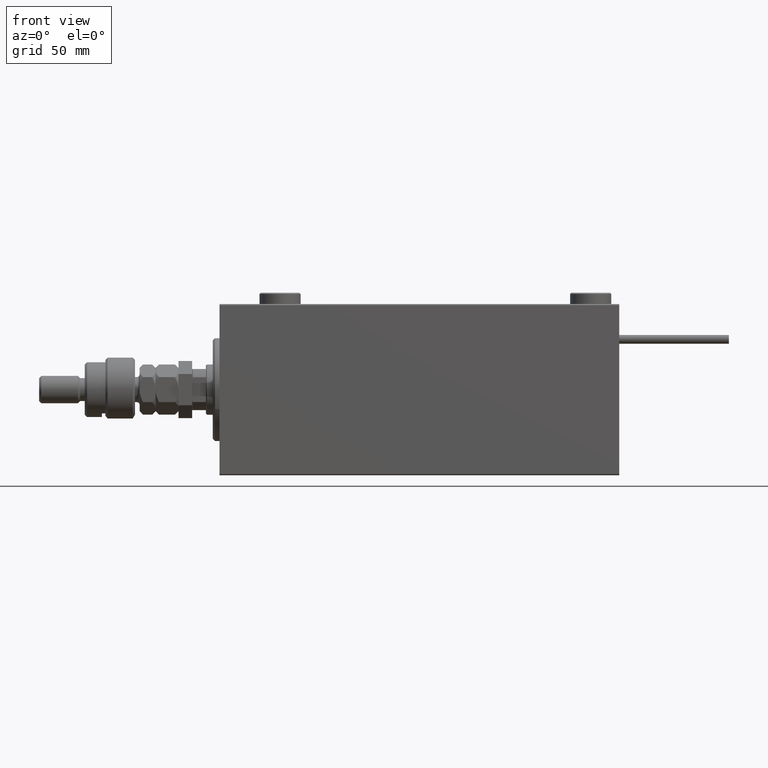
[diagram: clean part render]
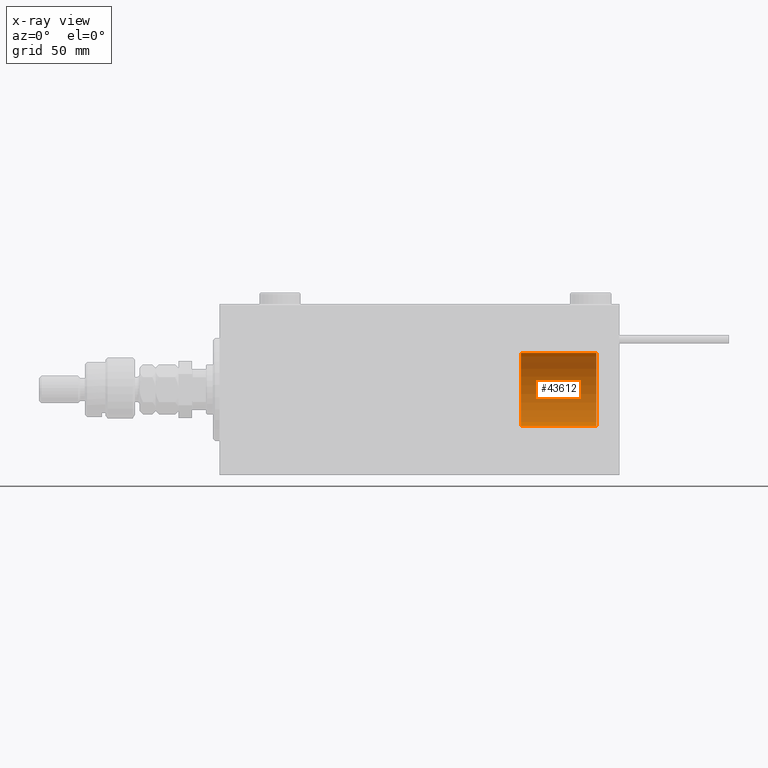
[diagram: x-ray — body ghosted, one internal face saturated and labeled with its STEP entity id]
A machine part, front view, then the same camera in x-ray: the body is ghosted and one INTERNAL B-rep face — a face not visible from any outside direction — is saturated and labeled: STEP entity #43612.
In plain terms, the highlighted cylindrical surface (edge-blend (fillet) strip) has radius 16 mm, axis along (1, -0, -0).
Its self-contained STEP definition (entity closure, byte-faithful):
#2135 = CYLINDRICAL_SURFACE ( 'NONE', #41455, 16.00000000000000000 ) ;
#2145 = CIRCLE ( 'NONE', #6542, 16.00000000000000000 ) ;
#6542 = AXIS2_PLACEMENT_3D ( 'NONE', #16024, #31680, #49548 ) ;
#6879 = ORIENTED_EDGE ( 'NONE', *, *, #31012, .T. ) ;
#9866 = EDGE_LOOP ( 'NONE', ( #37029, #6879, #42862, #38190 ) ) ;
#10693 = VERTEX_POINT ( 'NONE', #46170 ) ;
#11054 = AXIS2_PLACEMENT_3D ( 'NONE', #35814, #35265, #14924 ) ;
#12952 = DIRECTION ( 'NONE',  ( -0.000000000000000000, -0.000000000000000000, -1.000000000000000000 ) ) ;
#14770 = CARTESIAN_POINT ( 'NONE',  ( 0.000000000000000000, 0.000000000000000000, 33.00000000000000000 ) ) ;
#14924 = DIRECTION ( 'NONE',  ( 1.000000000000000000, 0.000000000000000000, 0.000000000000000000 ) ) ;
#15594 = CARTESIAN_POINT ( 'NONE',  ( -16.00000000000000000, 0.000000000000000000, 33.00000000000000000 ) ) ;
#16024 = CARTESIAN_POINT ( 'NONE',  ( 0.000000000000000000, 0.000000000000000000, 0.000000000000000000 ) ) ;
#16126 = EDGE_CURVE ( 'NONE', #18382, #54181, #22442, .T. ) ;
#17338 = LINE ( 'NONE', #34102, #28173 ) ;
#18382 = VERTEX_POINT ( 'NONE', #31545 ) ;
#20685 = VECTOR ( 'NONE', #49392, 1000.000000000000000 ) ;
#22442 = CIRCLE ( 'NONE', #11054, 16.00000000000000000 ) ;
#23005 = FACE_OUTER_BOUND ( 'NONE', #9866, .T. ) ;
#28173 = VECTOR ( 'NONE', #12952, 1000.000000000000000 ) ;
#28218 = DIRECTION ( 'NONE',  ( -1.000000000000000000, 0.000000000000000000, 0.000000000000000000 ) ) ;
#31012 = EDGE_CURVE ( 'NONE', #18382, #43918, #17338, .T. ) ;
#31545 = CARTESIAN_POINT ( 'NONE',  ( 16.00000000000000000, 1.959434878635765131E-15, 33.00000000000000000 ) ) ;
#31680 = DIRECTION ( 'NONE',  ( 0.000000000000000000, 0.000000000000000000, 1.000000000000000000 ) ) ;
#32623 = LINE ( 'NONE', #15594, #20685 ) ;
#34102 = CARTESIAN_POINT ( 'NONE',  ( 16.00000000000000000, 1.959434878635765131E-15, 33.00000000000000000 ) ) ;
#35265 = DIRECTION ( 'NONE',  ( 0.000000000000000000, 0.000000000000000000, 1.000000000000000000 ) ) ;
#35592 = CARTESIAN_POINT ( 'NONE',  ( 16.00000000000000000, 1.959434878635765131E-15, 0.000000000000000000 ) ) ;
#35814 = CARTESIAN_POINT ( 'NONE',  ( 0.000000000000000000, 0.000000000000000000, 33.00000000000000000 ) ) ;
#36474 = DIRECTION ( 'NONE',  ( -0.000000000000000000, -0.000000000000000000, -1.000000000000000000 ) ) ;
#37029 = ORIENTED_EDGE ( 'NONE', *, *, #16126, .F. ) ;
#37912 = CARTESIAN_POINT ( 'NONE',  ( -16.00000000000000000, 0.000000000000000000, 33.00000000000000000 ) ) ;
#38190 = ORIENTED_EDGE ( 'NONE', *, *, #50349, .F. ) ;
#41455 = AXIS2_PLACEMENT_3D ( 'NONE', #14770, #36474, #28218 ) ;
#42862 = ORIENTED_EDGE ( 'NONE', *, *, #47310, .T. ) ;
#43612 = ADVANCED_FACE ( 'NONE', ( #23005 ), #2135, .T. ) ;
#43918 = VERTEX_POINT ( 'NONE', #35592 ) ;
#46170 = CARTESIAN_POINT ( 'NONE',  ( -16.00000000000000000, 0.000000000000000000, 0.000000000000000000 ) ) ;
#47310 = EDGE_CURVE ( 'NONE', #43918, #10693, #2145, .T. ) ;
#49392 = DIRECTION ( 'NONE',  ( -0.000000000000000000, -0.000000000000000000, -1.000000000000000000 ) ) ;
#49548 = DIRECTION ( 'NONE',  ( 1.000000000000000000, 0.000000000000000000, 0.000000000000000000 ) ) ;
#50349 = EDGE_CURVE ( 'NONE', #54181, #10693, #32623, .T. ) ;
#54181 = VERTEX_POINT ( 'NONE', #37912 ) ;